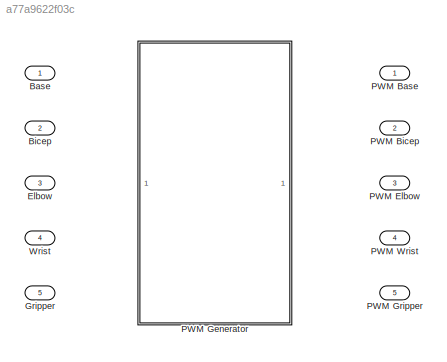
MODEL slx_a77a9622f03c
KIND model
BLOCK [Inport] Base
  IconDisplay = Port number
  OutDataTypeStr = uint8
  SampleTime = 1
BLOCK [Inport] Bicep
  IconDisplay = Port number
  OutDataTypeStr = uint8
  Port = 2
  SampleTime = 1
BLOCK [Inport] Elbow
  IconDisplay = Port number
  OutDataTypeStr = uint8
  Port = 3
  SampleTime = 1
BLOCK [Inport] Gripper
  IconDisplay = Port number
  OutDataTypeStr = uint8
  Port = 5
  SampleTime = 1
BLOCK [Outport] PWM Base
  IconDisplay = Port number
BLOCK [Outport] PWM Bicep
  IconDisplay = Port number
  Port = 2
BLOCK [Outport] PWM Elbow
  IconDisplay = Port number
  Port = 3
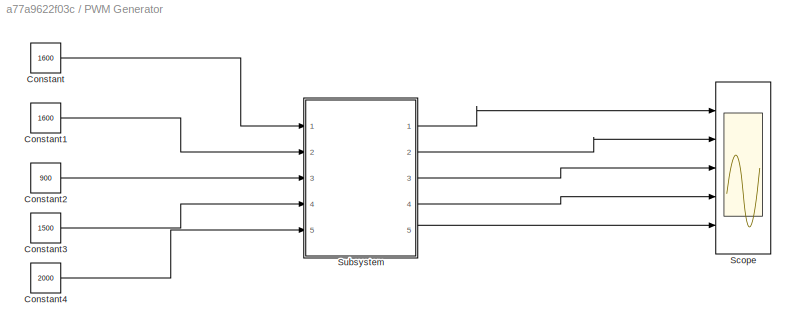
BLOCK [SubSystem] PWM Generator
  Ports = []
  RequestExecContextInheritance = off
  TreatAsAtomicUnit = on
BLOCK [Constant] PWM Generator/Constant
  OutDataTypeStr = uint8
  Value = 1600
BLOCK [Constant] PWM Generator/Constant1
  OutDataTypeStr = uint8
  Value = 1600
BLOCK [Constant] PWM Generator/Constant2
  OutDataTypeStr = uint8
  Value = 900
BLOCK [Constant] PWM Generator/Constant3
  OutDataTypeStr = uint8
  Value = 1500
BLOCK [Constant] PWM Generator/Constant4
  OutDataTypeStr = uint8
  Value = 2000
BLOCK [Scope] PWM Generator/Scope
  Floating = off
  LimitDataPoints = off
  NumInputPorts = 5
  Ports = [5]
  ShowLegends = off
  TimeRange = 200000
  YMax = 1~1~1~1~1
  YMin = 0~0~0~0~0
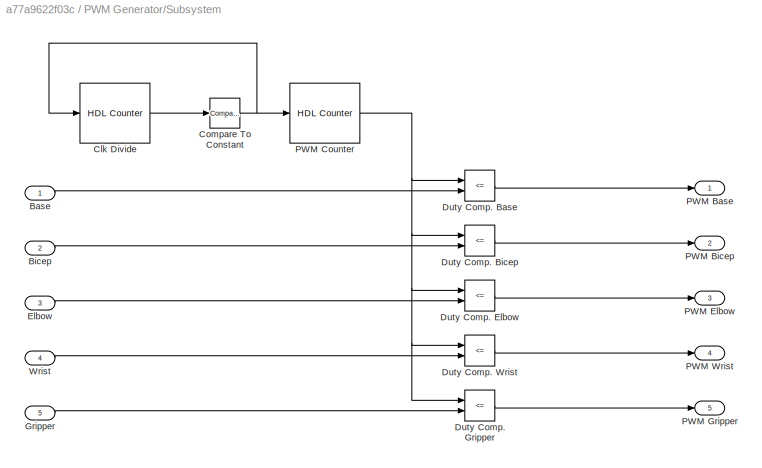
BLOCK [SubSystem] PWM Generator/Subsystem
  Ports = [5, 5]
  RequestExecContextInheritance = off
BLOCK [Inport] PWM Generator/Subsystem/Base
  IconDisplay = Port number
  OutDataTypeStr = uint8
  SampleTime = 1
BLOCK [Inport] PWM Generator/Subsystem/Bicep
  IconDisplay = Port number
  OutDataTypeStr = uint8
  Port = 2
  SampleTime = 1
BLOCK [Reference] PWM Generator/Subsystem/Clk Divide  REF=hdlsllib/HDL Operations/HDL Counter
  CountDataType = Unsigned
  CountDirPort = off
  CountEnbPort = off
  CountFracLen = 0
  CountFrom = 1
  CountFromType = Initial value
  CountInit = 1
  CountLoadPort = off
  CountMax = 500
  CountResetPort = on
  CountSampTime = 1
  CountStep = 1
  CountType = Free running
  CountWordLen = 16
  Ports = [1, 1]
  SourceBlock = hdlsllib/HDL Operations/HDL Counter
  SourceType = HDL Counter
BLOCK [Reference] PWM Generator/Subsystem/Compare To Constant  REF=simulink/Logic and Bit
Operations/Compare
To Constant
  OutDataTypeStr = boolean
  Ports = [1, 1]
  SourceBlock = simulink/Logic and Bit\nOperations/Compare\nTo Constant
  SourceType = Compare To Constant
  ZeroCross = on
  const = 500
  relop = ==
BLOCK [RelationalOperator] PWM Generator/Subsystem/Duty Comp. Base
  InputSameDT = off
  Operator = <=
  OutDataTypeStr = boolean
  Ports = [2, 1]
BLOCK [RelationalOperator] PWM Generator/Subsystem/Duty Comp. Bicep
  InputSameDT = off
  Operator = <=
  OutDataTypeStr = boolean
  Ports = [2, 1]
BLOCK [RelationalOperator] PWM Generator/Subsystem/Duty Comp. Elbow
  InputSameDT = off
  Operator = <=
  OutDataTypeStr = boolean
  Ports = [2, 1]
BLOCK [RelationalOperator] PWM Generator/Subsystem/Duty Comp. Gripper
  InputSameDT = off
  Operator = <=
  OutDataTypeStr = boolean
  Ports = [2, 1]
BLOCK [RelationalOperator] PWM Generator/Subsystem/Duty Comp. Wrist
  InputSameDT = off
  Operator = <=
  OutDataTypeStr = boolean
  Ports = [2, 1]
BLOCK [Inport] PWM Generator/Subsystem/Elbow
  IconDisplay = Port number
  OutDataTypeStr = uint8
  Port = 3
  SampleTime = 1
BLOCK [Inport] PWM Generator/Subsystem/Gripper
  IconDisplay = Port number
  OutDataTypeStr = uint8
  Port = 5
  SampleTime = 1
BLOCK [Outport] PWM Generator/Subsystem/PWM Base
  IconDisplay = Port number
BLOCK [Outport] PWM Generator/Subsystem/PWM Bicep
  IconDisplay = Port number
  Port = 2
BLOCK [Reference] PWM Generator/Subsystem/PWM Counter  REF=hdlsllib/HDL Operations/HDL Counter
  CountDataType = Unsigned
  CountDirPort = off
  CountEnbPort = on
  CountFracLen = 0
  CountFrom = 1
  CountFromType = Initial value
  CountInit = 1
  CountLoadPort = off
  CountMax = 2000
  CountResetPort = off
  CountSampTime = 1
  CountStep = 1
  CountType = Count limited
  CountWordLen = 16
  Ports = [1, 1]
  SourceBlock = hdlsllib/HDL Operations/HDL Counter
  SourceType = HDL Counter
BLOCK [Outport] PWM Generator/Subsystem/PWM Elbow
  IconDisplay = Port number
  Port = 3
BLOCK [Outport] PWM Generator/Subsystem/PWM Gripper
  IconDisplay = Port number
  Port = 5
BLOCK [Outport] PWM Generator/Subsystem/PWM Wrist
  IconDisplay = Port number
  Port = 4
BLOCK [Inport] PWM Generator/Subsystem/Wrist
  IconDisplay = Port number
  OutDataTypeStr = uint8
  Port = 4
  SampleTime = 1
BLOCK [Outport] PWM Gripper
  IconDisplay = Port number
  Port = 5
BLOCK [Outport] PWM Wrist
  IconDisplay = Port number
  Port = 4
BLOCK [Inport] Wrist
  IconDisplay = Port number
  OutDataTypeStr = uint8
  Port = 4
  SampleTime = 1
LINE PWM Generator/Constant1:1 -> PWM Generator/Subsystem:2
LINE PWM Generator/Constant2:1 -> PWM Generator/Subsystem:3
LINE PWM Generator/Constant3:1 -> PWM Generator/Subsystem:4
LINE PWM Generator/Constant4:1 -> PWM Generator/Subsystem:5
LINE PWM Generator/Constant:1 -> PWM Generator/Subsystem:1
LINE PWM Generator/Subsystem/Base:1 -> PWM Generator/Subsystem/Duty Comp. Base:2
LINE PWM Generator/Subsystem/Bicep:1 -> PWM Generator/Subsystem/Duty Comp. Bicep:2
LINE PWM Generator/Subsystem/Clk Divide:1 -> PWM Generator/Subsystem/Compare To Constant:1
NET PWM Generator/Subsystem/Compare To Constant:1 -> PWM Generator/Subsystem/Clk Divide:1, PWM Generator/Subsystem/PWM Counter:1
LINE PWM Generator/Subsystem/Duty Comp. Base:1 -> PWM Generator/Subsystem/PWM Base:1
LINE PWM Generator/Subsystem/Duty Comp. Bicep:1 -> PWM Generator/Subsystem/PWM Bicep:1
LINE PWM Generator/Subsystem/Duty Comp. Elbow:1 -> PWM Generator/Subsystem/PWM Elbow:1
LINE PWM Generator/Subsystem/Duty Comp. Gripper:1 -> PWM Generator/Subsystem/PWM Gripper:1
LINE PWM Generator/Subsystem/Duty Comp. Wrist:1 -> PWM Generator/Subsystem/PWM Wrist:1
LINE PWM Generator/Subsystem/Elbow:1 -> PWM Generator/Subsystem/Duty Comp. Elbow:2
LINE PWM Generator/Subsystem/Gripper:1 -> PWM Generator/Subsystem/Duty Comp. Gripper:2
NET PWM Generator/Subsystem/PWM Counter:1 -> PWM Generator/Subsystem/Duty Comp. Base:1, PWM Generator/Subsystem/Duty Comp. Bicep:1, PWM Generator/Subsystem/Duty Comp. Elbow:1, PWM Generator/Subsystem/Duty Comp. Gripper:1, PWM Generator/Subsystem/Duty Comp. Wrist:1
LINE PWM Generator/Subsystem/Wrist:1 -> PWM Generator/Subsystem/Duty Comp. Wrist:2
LINE PWM Generator/Subsystem:1 -> PWM Generator/Scope:1
LINE PWM Generator/Subsystem:2 -> PWM Generator/Scope:2
LINE PWM Generator/Subsystem:3 -> PWM Generator/Scope:3
LINE PWM Generator/Subsystem:4 -> PWM Generator/Scope:4
LINE PWM Generator/Subsystem:5 -> PWM Generator/Scope:5
note: NET lines group one-source signal fan-out (src -> all destinations, sorted); 1:1 wires keep LINE
